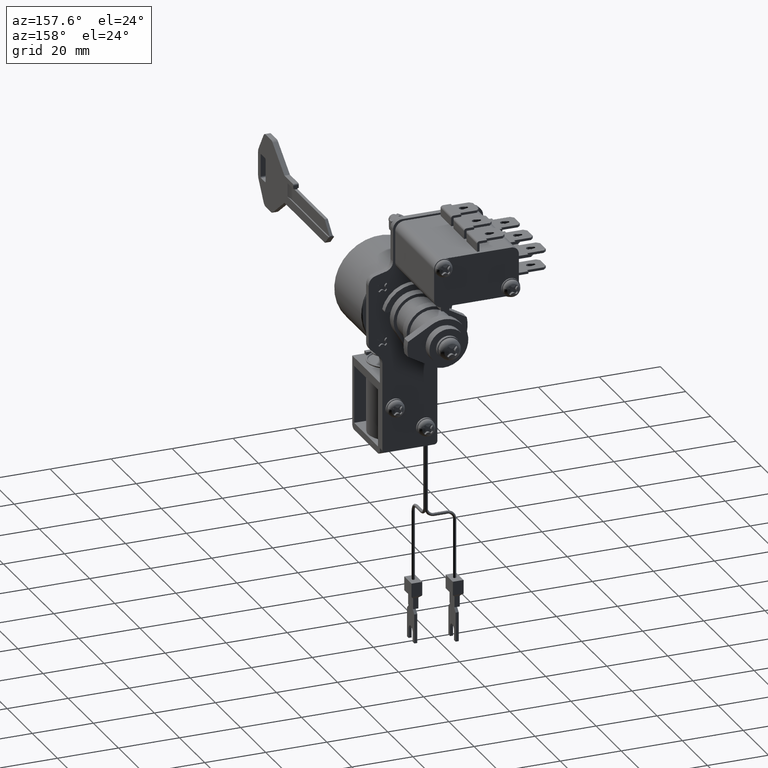
[diagram: clean part render]
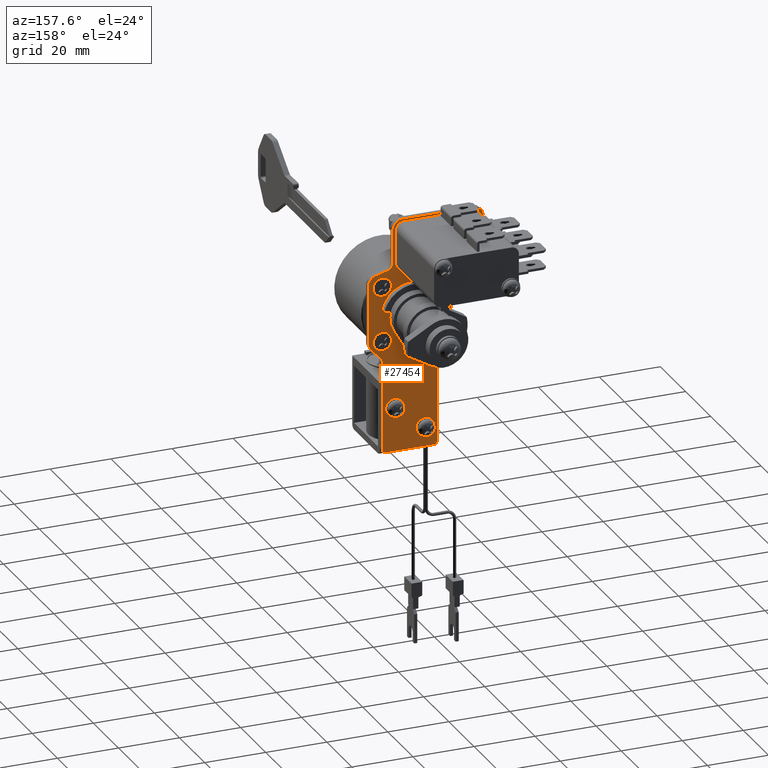
[diagram: same view with one face highlighted and labeled with its STEP entity id]
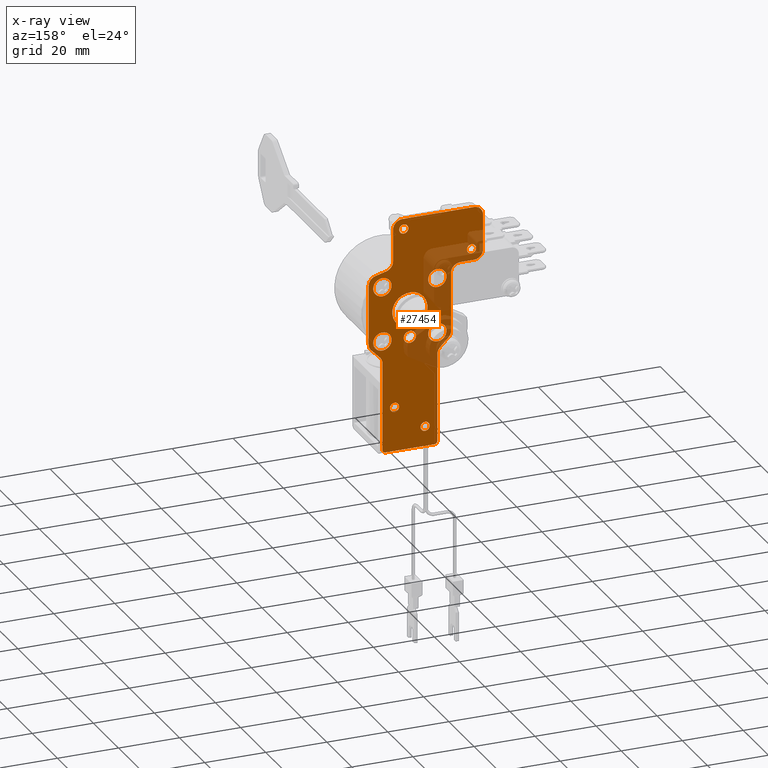
[diagram: x-ray of the same camera — body ghosted, the highlighted face saturated]
A machine part, auxiliary view. The second image highlights one B-rep face of the part: STEP entity #27454.
The next image is the same camera in x-ray: the body ghosted, the highlighted face saturated — about 22% of this face is hidden behind the body in this view.
In plain terms, the highlighted face is a freeform B-spline surface patch.
Its self-contained STEP definition (entity closure, byte-faithful):
#24603=CARTESIAN_POINT('',(29.0,-1.999923846119883,-8.982546928040161));
#24604=VERTEX_POINT('',#24603);
#24610=CARTESIAN_POINT('',(29.0,0.0,-10.999999999999940));
#24611=VERTEX_POINT('',#24610);
#24612=CARTESIAN_POINT('',(29.0,-1.999923846119883,-8.982546928040161));
#24613=CARTESIAN_POINT('',(28.999999999999996,-1.999999999999945,-8.991273297395450));
#24614=CARTESIAN_POINT('',(29.0,-1.999999999999945,-9.0));
#24615=CARTESIAN_POINT('',(29.0,-1.999999999999945,-10.999999999999943));
#24616=CARTESIAN_POINT('',(29.0,0.0,-10.999999999999940));
#24624=(BOUNDED_CURVE()B_SPLINE_CURVE(2,(#24612,#24613,#24614,#24615,#24616),.UNSPECIFIED.,.F.,.U.)B_SPLINE_CURVE_WITH_KNOTS((3,2,3),(0.248460105495365,0.250000000000000,0.500000000000000),.UNSPECIFIED.)CURVE()GEOMETRIC_REPRESENTATION_ITEM()RATIONAL_B_SPLINE_CURVE((0.996414027707793,0.998195901367617,1.0,0.707106781186548,1.0))REPRESENTATION_ITEM(''));
#24625=EDGE_CURVE('',#24604,#24611,#24624,.T.);
#24627=CARTESIAN_POINT('',(29.0,1.984532427645714,-9.248256004202085));
#24628=VERTEX_POINT('',#24627);
#24629=CARTESIAN_POINT('',(29.0,0.0,-10.999999999999940));
#24630=CARTESIAN_POINT('',(28.999999999999993,1.765397200224316,-10.999999999999943));
#24631=CARTESIAN_POINT('',(29.0,1.984532427645715,-9.248256004202085));
#24639=(BOUNDED_CURVE()B_SPLINE_CURVE(2,(#24629,#24630,#24631),.UNSPECIFIED.,.F.,.U.)B_SPLINE_CURVE_WITH_KNOTS((3,3),(0.500000000000000,0.728526071022086),.UNSPECIFIED.)CURVE()GEOMETRIC_REPRESENTATION_ITEM()RATIONAL_B_SPLINE_CURVE((1.0,0.732265053902198,0.954005430260721))REPRESENTATION_ITEM(''));
#24640=EDGE_CURVE('',#24611,#24628,#24639,.T.);
#24690=CARTESIAN_POINT('',(29.0,0.0,-7.000000000000055));
#24691=VERTEX_POINT('',#24690);
#24692=CARTESIAN_POINT('',(28.999999999999996,1.984532427645714,-9.248256004202085));
#24693=CARTESIAN_POINT('',(29.0,1.999999999999945,-9.124609855109915));
#24694=CARTESIAN_POINT('',(29.0,1.999999999999945,-9.0));
#24695=CARTESIAN_POINT('',(29.0,1.999999999999945,-7.000000000000055));
#24696=CARTESIAN_POINT('',(29.0,0.0,-7.000000000000055));
#24704=(BOUNDED_CURVE()B_SPLINE_CURVE(2,(#24692,#24693,#24694,#24695,#24696),.UNSPECIFIED.,.F.,.U.)B_SPLINE_CURVE_WITH_KNOTS((3,2,3),(0.728526071022087,0.750000000000000,1.0),.UNSPECIFIED.)CURVE()GEOMETRIC_REPRESENTATION_ITEM()RATIONAL_B_SPLINE_CURVE((0.954005430260723,0.974841727284350,1.0,0.707106781186548,1.0))REPRESENTATION_ITEM(''));
#24705=EDGE_CURVE('',#24628,#24691,#24704,.T.);
#24707=CARTESIAN_POINT('',(29.0,0.0,-7.000000000000055));
#24708=CARTESIAN_POINT('',(28.999999999999996,-1.982622419280312,-7.000000000000053));
#24709=CARTESIAN_POINT('',(29.000000000000004,-1.999923846119883,-8.982546928040161));
#24717=(BOUNDED_CURVE()B_SPLINE_CURVE(2,(#24707,#24708,#24709),.UNSPECIFIED.,.F.,.U.)B_SPLINE_CURVE_WITH_KNOTS((3,3),(0.0,0.248460105495365),.UNSPECIFIED.)CURVE()GEOMETRIC_REPRESENTATION_ITEM()RATIONAL_B_SPLINE_CURVE((1.0,0.708910879818930,0.996414027707793))REPRESENTATION_ITEM(''));
#24718=EDGE_CURVE('',#24691,#24604,#24717,.T.);
#24755=CARTESIAN_POINT('',(29.0,4.999999999999770,-38.0));
#24756=VERTEX_POINT('',#24755);
#24757=CARTESIAN_POINT('',(29.0,3.504623999442665,-39.382311355867117));
#24758=VERTEX_POINT('',#24757);
#24759=CARTESIAN_POINT('',(29.0,4.999999999999770,-38.0));
#24760=CARTESIAN_POINT('',(29.000000000000007,3.613414263519043,-38.000000000000007));
#24761=CARTESIAN_POINT('',(29.000000000000004,3.504623999442665,-39.382311355867124));
#24769=(BOUNDED_CURVE()B_SPLINE_CURVE(2,(#24759,#24760,#24761),.UNSPECIFIED.,.F.,.U.)B_SPLINE_CURVE_WITH_KNOTS((3,3),(0.0,0.236331300508706),.UNSPECIFIED.)CURVE()GEOMETRIC_REPRESENTATION_ITEM()RATIONAL_B_SPLINE_CURVE((1.0,0.723120658750543,0.969723355912909))REPRESENTATION_ITEM(''));
#24770=EDGE_CURVE('',#24756,#24758,#24769,.T.);
#24811=CARTESIAN_POINT('',(29.0,6.495376000556876,-39.617688644132883));
#24812=VERTEX_POINT('',#24811);
#24818=CARTESIAN_POINT('',(29.0,6.495376000556876,-39.617688644132876));
#24819=CARTESIAN_POINT('',(29.0,6.499999999999770,-39.558935161055118));
#24820=CARTESIAN_POINT('',(29.0,6.499999999999770,-39.500000000000000));
#24821=CARTESIAN_POINT('',(29.0,6.499999999999771,-38.0));
#24822=CARTESIAN_POINT('',(29.0,4.999999999999770,-38.0));
#24830=(BOUNDED_CURVE()B_SPLINE_CURVE(2,(#24818,#24819,#24820,#24821,#24822),.UNSPECIFIED.,.F.,.U.)B_SPLINE_CURVE_WITH_KNOTS((3,2,3),(0.736331300508706,0.750000000000000,1.0),.UNSPECIFIED.)CURVE()GEOMETRIC_REPRESENTATION_ITEM()RATIONAL_B_SPLINE_CURVE((0.969723355912910,0.983986122436004,1.0,0.707106781186548,1.0))REPRESENTATION_ITEM(''));
#24831=EDGE_CURVE('',#24812,#24756,#24830,.T.);
#24854=CARTESIAN_POINT('',(29.0,4.999999999999770,-41.0));
#24855=VERTEX_POINT('',#24854);
#24856=CARTESIAN_POINT('',(29.000000000000004,3.504623999442665,-39.382311355867124));
#24857=CARTESIAN_POINT('',(28.999999999999996,3.499999999999770,-39.441064838944882));
#24858=CARTESIAN_POINT('',(29.0,3.499999999999770,-39.500000000000000));
#24859=CARTESIAN_POINT('',(29.0,3.499999999999770,-41.0));
#24860=CARTESIAN_POINT('',(29.0,4.999999999999770,-41.0));
#24868=(BOUNDED_CURVE()B_SPLINE_CURVE(2,(#24856,#24857,#24858,#24859,#24860),.UNSPECIFIED.,.F.,.U.)B_SPLINE_CURVE_WITH_KNOTS((3,2,3),(0.236331300508706,0.250000000000000,0.500000000000000),.UNSPECIFIED.)CURVE()GEOMETRIC_REPRESENTATION_ITEM()RATIONAL_B_SPLINE_CURVE((0.969723355912909,0.983986122436004,1.0,0.707106781186548,1.0))REPRESENTATION_ITEM(''));
#24869=EDGE_CURVE('',#24758,#24855,#24868,.T.);
#24871=CARTESIAN_POINT('',(29.0,4.999999999999770,-41.0));
#24872=CARTESIAN_POINT('',(29.000000000000004,6.386585736480493,-40.999999999999993));
#24873=CARTESIAN_POINT('',(28.999999999999996,6.495376000556876,-39.617688644132876));
#24881=(BOUNDED_CURVE()B_SPLINE_CURVE(2,(#24871,#24872,#24873),.UNSPECIFIED.,.F.,.U.)B_SPLINE_CURVE_WITH_KNOTS((3,3),(0.500000000000000,0.736331300508705),.UNSPECIFIED.)CURVE()GEOMETRIC_REPRESENTATION_ITEM()RATIONAL_B_SPLINE_CURVE((1.0,0.723120658750544,0.969723355912908))REPRESENTATION_ITEM(''));
#24882=EDGE_CURVE('',#24855,#24812,#24881,.T.);
#24937=CARTESIAN_POINT('',(29.0,-5.0,-30.0));
#24938=VERTEX_POINT('',#24937);
#24939=CARTESIAN_POINT('',(29.0,-6.495376000557107,-31.382311355867120));
#24940=VERTEX_POINT('',#24939);
#24941=CARTESIAN_POINT('',(29.0,-5.0,-30.0));
#24942=CARTESIAN_POINT('',(29.000000000000007,-6.386585736480729,-30.0));
#24943=CARTESIAN_POINT('',(29.000000000000004,-6.495376000557107,-31.382311355867127));
#24951=(BOUNDED_CURVE()B_SPLINE_CURVE(2,(#24941,#24942,#24943),.UNSPECIFIED.,.F.,.U.)B_SPLINE_CURVE_WITH_KNOTS((3,3),(0.0,0.236331300508706),.UNSPECIFIED.)CURVE()GEOMETRIC_REPRESENTATION_ITEM()RATIONAL_B_SPLINE_CURVE((1.0,0.723120658750543,0.969723355912909))REPRESENTATION_ITEM(''));
#24952=EDGE_CURVE('',#24938,#24940,#24951,.T.);
#24993=CARTESIAN_POINT('',(29.0,-3.504623999442894,-31.617688644132880));
#24994=VERTEX_POINT('',#24993);
#25000=CARTESIAN_POINT('',(29.000000000000004,-3.504623999442894,-31.617688644132876));
#25001=CARTESIAN_POINT('',(29.0,-3.500000000000000,-31.558935161055118));
#25002=CARTESIAN_POINT('',(29.0,-3.500000000000000,-31.500000000000000));
#25003=CARTESIAN_POINT('',(29.0,-3.499999999999999,-30.000000000000004));
#25004=CARTESIAN_POINT('',(29.0,-5.0,-30.0));
#25012=(BOUNDED_CURVE()B_SPLINE_CURVE(2,(#25000,#25001,#25002,#25003,#25004),.UNSPECIFIED.,.F.,.U.)B_SPLINE_CURVE_WITH_KNOTS((3,2,3),(0.736331300508706,0.750000000000000,1.0),.UNSPECIFIED.)CURVE()GEOMETRIC_REPRESENTATION_ITEM()RATIONAL_B_SPLINE_CURVE((0.969723355912909,0.983986122436004,1.0,0.707106781186548,1.0))REPRESENTATION_ITEM(''));
#25013=EDGE_CURVE('',#24994,#24938,#25012,.T.);
#25036=CARTESIAN_POINT('',(29.0,-5.0,-33.0));
#25037=VERTEX_POINT('',#25036);
#25038=CARTESIAN_POINT('',(29.000000000000004,-6.495376000557107,-31.382311355867127));
#25039=CARTESIAN_POINT('',(28.999999999999996,-6.500000000000002,-31.441064838944875));
#25040=CARTESIAN_POINT('',(29.0,-6.500000000000001,-31.500000000000000));
#25041=CARTESIAN_POINT('',(29.0,-6.500000000000003,-33.0));
#25042=CARTESIAN_POINT('',(29.0,-5.0,-33.0));
#25050=(BOUNDED_CURVE()B_SPLINE_CURVE(2,(#25038,#25039,#25040,#25041,#25042),.UNSPECIFIED.,.F.,.U.)B_SPLINE_CURVE_WITH_KNOTS((3,2,3),(0.236331300508706,0.250000000000000,0.500000000000000),.UNSPECIFIED.)CURVE()GEOMETRIC_REPRESENTATION_ITEM()RATIONAL_B_SPLINE_CURVE((0.969723355912909,0.983986122436004,1.0,0.707106781186548,1.0))REPRESENTATION_ITEM(''));
#25051=EDGE_CURVE('',#24940,#25037,#25050,.T.);
#25053=CARTESIAN_POINT('',(29.0,-5.0,-33.0));
#25054=CARTESIAN_POINT('',(29.000000000000004,-3.613414263519278,-33.0));
#25055=CARTESIAN_POINT('',(28.999999999999996,-3.504623999442894,-31.617688644132880));
#25063=(BOUNDED_CURVE()B_SPLINE_CURVE(2,(#25053,#25054,#25055),.UNSPECIFIED.,.F.,.U.)B_SPLINE_CURVE_WITH_KNOTS((3,3),(0.500000000000000,0.736331300508705),.UNSPECIFIED.)CURVE()GEOMETRIC_REPRESENTATION_ITEM()RATIONAL_B_SPLINE_CURVE((1.0,0.723120658750544,0.969723355912908))REPRESENTATION_ITEM(''));
#25064=EDGE_CURVE('',#25037,#24994,#25063,.T.);
#25119=CARTESIAN_POINT('',(29.0,-2.0,28.600000000000001));
#25120=VERTEX_POINT('',#25119);
#25121=CARTESIAN_POINT('',(29.0,-3.495376000557106,27.217688644132870));
#25122=VERTEX_POINT('',#25121);
#25123=CARTESIAN_POINT('',(29.0,-2.0,28.600000000000001));
#25124=CARTESIAN_POINT('',(29.000000000000004,-3.386585736480730,28.600000000000001));
#25125=CARTESIAN_POINT('',(29.0,-3.495376000557106,27.217688644132874));
#25133=(BOUNDED_CURVE()B_SPLINE_CURVE(2,(#25123,#25124,#25125),.UNSPECIFIED.,.F.,.U.)B_SPLINE_CURVE_WITH_KNOTS((3,3),(0.0,0.236331300508706),.UNSPECIFIED.)CURVE()GEOMETRIC_REPRESENTATION_ITEM()RATIONAL_B_SPLINE_CURVE((1.0,0.723120658750543,0.969723355912911))REPRESENTATION_ITEM(''));
#25134=EDGE_CURVE('',#25120,#25122,#25133,.T.);
#25175=CARTESIAN_POINT('',(29.000000000000011,-0.504623999442894,26.982311355867129));
#25176=VERTEX_POINT('',#25175);
#25182=CARTESIAN_POINT('',(29.000000000000004,-0.504623999442894,26.982311355867129));
#25183=CARTESIAN_POINT('',(29.0,-0.500000000000000,27.041064838944877));
#25184=CARTESIAN_POINT('',(29.0,-0.500000000000000,27.100000000000001));
#25185=CARTESIAN_POINT('',(29.0,-0.500000000000000,28.600000000000012));
#25186=CARTESIAN_POINT('',(29.0,-2.0,28.600000000000001));
#25194=(BOUNDED_CURVE()B_SPLINE_CURVE(2,(#25182,#25183,#25184,#25185,#25186),.UNSPECIFIED.,.F.,.U.)B_SPLINE_CURVE_WITH_KNOTS((3,2,3),(0.736331300508706,0.750000000000000,1.0),.UNSPECIFIED.)CURVE()GEOMETRIC_REPRESENTATION_ITEM()RATIONAL_B_SPLINE_CURVE((0.969723355912911,0.983986122436005,1.0,0.707106781186548,1.0))REPRESENTATION_ITEM(''));
#25195=EDGE_CURVE('',#25176,#25120,#25194,.T.);
#25218=CARTESIAN_POINT('',(29.0,-2.0,25.600000000000001));
#25219=VERTEX_POINT('',#25218);
#25220=CARTESIAN_POINT('',(29.000000000000004,-3.495376000557105,27.217688644132867));
#25221=CARTESIAN_POINT('',(29.0,-3.500000000000000,27.158935161055119));
#25222=CARTESIAN_POINT('',(29.0,-3.500000000000000,27.100000000000001));
#25223=CARTESIAN_POINT('',(29.0,-3.499999999999999,25.600000000000001));
#25224=CARTESIAN_POINT('',(29.0,-2.0,25.600000000000001));
#25232=(BOUNDED_CURVE()B_SPLINE_CURVE(2,(#25220,#25221,#25222,#25223,#25224),.UNSPECIFIED.,.F.,.U.)B_SPLINE_CURVE_WITH_KNOTS((3,2,3),(0.236331300508706,0.250000000000000,0.500000000000000),.UNSPECIFIED.)CURVE()GEOMETRIC_REPRESENTATION_ITEM()RATIONAL_B_SPLINE_CURVE((0.969723355912911,0.983986122436005,1.0,0.707106781186548,1.0))REPRESENTATION_ITEM(''));
#25233=EDGE_CURVE('',#25122,#25219,#25232,.T.);
#25235=CARTESIAN_POINT('',(29.0,-2.0,25.600000000000001));
#25236=CARTESIAN_POINT('',(29.000000000000004,-0.613414263519278,25.600000000000005));
#25237=CARTESIAN_POINT('',(29.000000000000007,-0.504623999442894,26.982311355867129));
#25245=(BOUNDED_CURVE()B_SPLINE_CURVE(2,(#25235,#25236,#25237),.UNSPECIFIED.,.F.,.U.)B_SPLINE_CURVE_WITH_KNOTS((3,3),(0.500000000000000,0.736331300508705),.UNSPECIFIED.)CURVE()GEOMETRIC_REPRESENTATION_ITEM()RATIONAL_B_SPLINE_CURVE((1.0,0.723120658750544,0.969723355912908))REPRESENTATION_ITEM(''));
#25246=EDGE_CURVE('',#25219,#25176,#25245,.T.);
#25301=CARTESIAN_POINT('',(29.0,20.199999999999999,18.300000000000001));
#25302=VERTEX_POINT('',#25301);
#25303=CARTESIAN_POINT('',(29.0,18.704623999442891,16.917688644132870));
#25304=VERTEX_POINT('',#25303);
#25305=CARTESIAN_POINT('',(29.0,20.199999999999999,18.300000000000001));
#25306=CARTESIAN_POINT('',(28.999999999999993,18.813414263519267,18.299999999999997));
#25307=CARTESIAN_POINT('',(29.0,18.704623999442894,16.917688644132870));
#25315=(BOUNDED_CURVE()B_SPLINE_CURVE(2,(#25305,#25306,#25307),.UNSPECIFIED.,.F.,.U.)B_SPLINE_CURVE_WITH_KNOTS((3,3),(0.0,0.236331300508706),.UNSPECIFIED.)CURVE()GEOMETRIC_REPRESENTATION_ITEM()RATIONAL_B_SPLINE_CURVE((1.0,0.723120658750543,0.969723355912910))REPRESENTATION_ITEM(''));
#25316=EDGE_CURVE('',#25302,#25304,#25315,.T.);
#25357=CARTESIAN_POINT('',(29.0,21.695376000557101,16.682311355867132));
#25358=VERTEX_POINT('',#25357);
#25364=CARTESIAN_POINT('',(29.000000000000004,21.695376000557104,16.682311355867128));
#25365=CARTESIAN_POINT('',(29.000000000000004,21.699999999999999,16.741064838944883));
#25366=CARTESIAN_POINT('',(29.0,21.699999999999999,16.800000000000001));
#25367=CARTESIAN_POINT('',(29.0,21.699999999999996,18.300000000000001));
#25368=CARTESIAN_POINT('',(29.0,20.199999999999999,18.300000000000001));
#25376=(BOUNDED_CURVE()B_SPLINE_CURVE(2,(#25364,#25365,#25366,#25367,#25368),.UNSPECIFIED.,.F.,.U.)B_SPLINE_CURVE_WITH_KNOTS((3,2,3),(0.736331300508707,0.750000000000000,1.0),.UNSPECIFIED.)CURVE()GEOMETRIC_REPRESENTATION_ITEM()RATIONAL_B_SPLINE_CURVE((0.969723355912911,0.983986122436005,1.0,0.707106781186548,1.0))REPRESENTATION_ITEM(''));
#25377=EDGE_CURVE('',#25358,#25302,#25376,.T.);
#25400=CARTESIAN_POINT('',(29.0,20.199999999999999,15.300000000000001));
#25401=VERTEX_POINT('',#25400);
#25402=CARTESIAN_POINT('',(29.0,18.704623999442894,16.917688644132870));
#25403=CARTESIAN_POINT('',(29.000000000000007,18.699999999999999,16.858935161055118));
#25404=CARTESIAN_POINT('',(29.0,18.699999999999999,16.800000000000001));
#25405=CARTESIAN_POINT('',(29.0,18.699999999999999,15.300000000000004));
#25406=CARTESIAN_POINT('',(29.0,20.199999999999999,15.300000000000001));
#25414=(BOUNDED_CURVE()B_SPLINE_CURVE(2,(#25402,#25403,#25404,#25405,#25406),.UNSPECIFIED.,.F.,.U.)B_SPLINE_CURVE_WITH_KNOTS((3,2,3),(0.236331300508706,0.250000000000000,0.500000000000000),.UNSPECIFIED.)CURVE()GEOMETRIC_REPRESENTATION_ITEM()RATIONAL_B_SPLINE_CURVE((0.969723355912910,0.983986122436004,1.0,0.707106781186548,1.0))REPRESENTATION_ITEM(''));
#25415=EDGE_CURVE('',#25304,#25401,#25414,.T.);
#25417=CARTESIAN_POINT('',(29.0,20.199999999999999,15.300000000000001));
#25418=CARTESIAN_POINT('',(29.000000000000004,21.586585736480735,15.299999999999997));
#25419=CARTESIAN_POINT('',(28.999999999999996,21.695376000557104,16.682311355867128));
#25427=(BOUNDED_CURVE()B_SPLINE_CURVE(2,(#25417,#25418,#25419),.UNSPECIFIED.,.F.,.U.)B_SPLINE_CURVE_WITH_KNOTS((3,3),(0.500000000000000,0.736331300508708),.UNSPECIFIED.)CURVE()GEOMETRIC_REPRESENTATION_ITEM()RATIONAL_B_SPLINE_CURVE((1.0,0.723120658750541,0.969723355912913))REPRESENTATION_ITEM(''));
#25428=EDGE_CURVE('',#25401,#25358,#25427,.T.);
#25483=CARTESIAN_POINT('',(29.0,-9.0,-5.999999999999999));
#25484=VERTEX_POINT('',#25483);
#25485=CARTESIAN_POINT('',(29.000000000025469,-6.009247998790690,-8.764622712617925));
#25486=VERTEX_POINT('',#25485);
#25487=CARTESIAN_POINT('',(29.0,-9.0,-5.999999999999999));
#25488=CARTESIAN_POINT('',(29.0,-6.226828525390990,-5.999999999999999));
#25489=CARTESIAN_POINT('',(29.000000000025477,-6.009247998790690,-8.764622712617927));
#25497=(BOUNDED_CURVE()B_SPLINE_CURVE(2,(#25487,#25488,#25489),.UNSPECIFIED.,.F.,.U.)B_SPLINE_CURVE_WITH_KNOTS((3,3),(0.0,0.236331300610236),.UNSPECIFIED.)CURVE()GEOMETRIC_REPRESENTATION_ITEM()RATIONAL_B_SPLINE_CURVE((1.0,0.723120658631593,0.969723356124796))REPRESENTATION_ITEM(''));
#25498=EDGE_CURVE('',#25484,#25486,#25497,.T.);
#25500=CARTESIAN_POINT('',(29.000000000025469,-11.990752001209311,-9.235377287382075));
#25501=VERTEX_POINT('',#25500);
#25502=CARTESIAN_POINT('',(29.000000000025469,-11.990752001209311,-9.235377287382075));
#25503=CARTESIAN_POINT('',(29.000000000000004,-11.999999999999998,-9.117870321220462));
#25504=CARTESIAN_POINT('',(29.0,-12.0,-9.0));
#25505=CARTESIAN_POINT('',(29.0,-12.0,-5.999999999999999));
#25506=CARTESIAN_POINT('',(29.0,-9.0,-5.999999999999999));
#25514=(BOUNDED_CURVE()B_SPLINE_CURVE(2,(#25502,#25503,#25504,#25505,#25506),.UNSPECIFIED.,.F.,.U.)B_SPLINE_CURVE_WITH_KNOTS((3,2,3),(0.736331300610236,0.750000000000000,1.0),.UNSPECIFIED.)CURVE()GEOMETRIC_REPRESENTATION_ITEM()RATIONAL_B_SPLINE_CURVE((0.969723356124796,0.983986122554954,1.0,0.707106781186548,1.0))REPRESENTATION_ITEM(''));
#25515=EDGE_CURVE('',#25501,#25484,#25514,.T.);
#25582=CARTESIAN_POINT('',(29.0,-9.0,-12.0));
#25583=VERTEX_POINT('',#25582);
#25584=CARTESIAN_POINT('',(29.000000000025469,-6.009247998790690,-8.764622712617925));
#25585=CARTESIAN_POINT('',(29.000000000000004,-5.999999999999999,-8.882129678779537));
#25586=CARTESIAN_POINT('',(29.0,-5.999999999999999,-9.0));
#25587=CARTESIAN_POINT('',(29.0,-5.999999999999999,-12.0));
#25588=CARTESIAN_POINT('',(29.0,-9.0,-12.0));
#25596=(BOUNDED_CURVE()B_SPLINE_CURVE(2,(#25584,#25585,#25586,#25587,#25588),.UNSPECIFIED.,.F.,.U.)B_SPLINE_CURVE_WITH_KNOTS((3,2,3),(0.236331300610236,0.250000000000000,0.500000000000000),.UNSPECIFIED.)CURVE()GEOMETRIC_REPRESENTATION_ITEM()RATIONAL_B_SPLINE_CURVE((0.969723356124796,0.983986122554954,1.0,0.707106781186548,1.0))REPRESENTATION_ITEM(''));
#25597=EDGE_CURVE('',#25486,#25583,#25596,.T.);
#25631=CARTESIAN_POINT('',(29.0,-9.0,-12.0));
#25632=CARTESIAN_POINT('',(29.000000000000007,-11.773171474608995,-12.000000000000002));
#25633=CARTESIAN_POINT('',(29.000000000025477,-11.990752001209312,-9.235377287382075));
#25641=(BOUNDED_CURVE()B_SPLINE_CURVE(2,(#25631,#25632,#25633),.UNSPECIFIED.,.F.,.U.)B_SPLINE_CURVE_WITH_KNOTS((3,3),(0.500000000000000,0.736331300610235),.UNSPECIFIED.)CURVE()GEOMETRIC_REPRESENTATION_ITEM()RATIONAL_B_SPLINE_CURVE((1.0,0.723120658631594,0.969723356124794))REPRESENTATION_ITEM(''));
#25642=EDGE_CURVE('',#25583,#25501,#25641,.T.);
#25665=CARTESIAN_POINT('',(29.0,9.0,-5.999999999999999));
#25666=VERTEX_POINT('',#25665);
#25667=CARTESIAN_POINT('',(29.000000000025469,11.990752001209311,-8.764622712617925));
#25668=VERTEX_POINT('',#25667);
#25669=CARTESIAN_POINT('',(29.0,9.0,-5.999999999999999));
#25670=CARTESIAN_POINT('',(29.0,11.773171474609006,-5.999999999999999));
#25671=CARTESIAN_POINT('',(29.000000000025473,11.990752001209316,-8.764622712617925));
#25679=(BOUNDED_CURVE()B_SPLINE_CURVE(2,(#25669,#25670,#25671),.UNSPECIFIED.,.F.,.U.)B_SPLINE_CURVE_WITH_KNOTS((3,3),(0.0,0.236331300610236),.UNSPECIFIED.)CURVE()GEOMETRIC_REPRESENTATION_ITEM()RATIONAL_B_SPLINE_CURVE((1.0,0.723120658631593,0.969723356124795))REPRESENTATION_ITEM(''));
#25680=EDGE_CURVE('',#25666,#25668,#25679,.T.);
#25682=CARTESIAN_POINT('',(29.000000000025469,6.009247998790690,-9.235377287382077));
#25683=VERTEX_POINT('',#25682);
#25684=CARTESIAN_POINT('',(29.000000000025477,6.009247998790690,-9.235377287382077));
#25685=CARTESIAN_POINT('',(28.999999999999996,5.999999999999998,-9.117870321220464));
#25686=CARTESIAN_POINT('',(29.0,5.999999999999999,-9.0));
#25687=CARTESIAN_POINT('',(29.0,5.999999999999999,-5.999999999999999));
#25688=CARTESIAN_POINT('',(29.0,9.0,-5.999999999999999));
#25696=(BOUNDED_CURVE()B_SPLINE_CURVE(2,(#25684,#25685,#25686,#25687,#25688),.UNSPECIFIED.,.F.,.U.)B_SPLINE_CURVE_WITH_KNOTS((3,2,3),(0.736331300610236,0.750000000000000,1.0),.UNSPECIFIED.)CURVE()GEOMETRIC_REPRESENTATION_ITEM()RATIONAL_B_SPLINE_CURVE((0.969723356124795,0.983986122554954,1.0,0.707106781186548,1.0))REPRESENTATION_ITEM(''));
#25697=EDGE_CURVE('',#25683,#25666,#25696,.T.);
#25764=CARTESIAN_POINT('',(29.0,9.0,-12.0));
#25765=VERTEX_POINT('',#25764);
#25766=CARTESIAN_POINT('',(29.000000000025469,11.990752001209314,-8.764622712617925));
#25767=CARTESIAN_POINT('',(28.999999999999996,11.999999999999998,-8.882129678779537));
#25768=CARTESIAN_POINT('',(29.0,12.0,-9.0));
#25769=CARTESIAN_POINT('',(29.0,12.0,-12.0));
#25770=CARTESIAN_POINT('',(29.0,9.0,-12.0));
#25778=(BOUNDED_CURVE()B_SPLINE_CURVE(2,(#25766,#25767,#25768,#25769,#25770),.UNSPECIFIED.,.F.,.U.)B_SPLINE_CURVE_WITH_KNOTS((3,2,3),(0.236331300610236,0.250000000000000,0.500000000000000),.UNSPECIFIED.)CURVE()GEOMETRIC_REPRESENTATION_ITEM()RATIONAL_B_SPLINE_CURVE((0.969723356124795,0.983986122554954,1.0,0.707106781186548,1.0))REPRESENTATION_ITEM(''));
#25779=EDGE_CURVE('',#25668,#25765,#25778,.T.);
#25813=CARTESIAN_POINT('',(29.0,9.0,-12.0));
#25814=CARTESIAN_POINT('',(29.000000000000007,6.226828525391006,-12.000000000000002));
#25815=CARTESIAN_POINT('',(29.000000000025477,6.009247998790690,-9.235377287382077));
#25823=(BOUNDED_CURVE()B_SPLINE_CURVE(2,(#25813,#25814,#25815),.UNSPECIFIED.,.F.,.U.)B_SPLINE_CURVE_WITH_KNOTS((3,3),(0.500000000000000,0.736331300610235),.UNSPECIFIED.)CURVE()GEOMETRIC_REPRESENTATION_ITEM()RATIONAL_B_SPLINE_CURVE((1.0,0.723120658631594,0.969723356124794))REPRESENTATION_ITEM(''));
#25824=EDGE_CURVE('',#25765,#25683,#25823,.T.);
#25847=CARTESIAN_POINT('',(29.0,-9.0,12.0));
#25848=VERTEX_POINT('',#25847);
#25849=CARTESIAN_POINT('',(29.000000000025469,-6.009247998790690,9.235377287382075));
#25850=VERTEX_POINT('',#25849);
#25851=CARTESIAN_POINT('',(29.0,-9.0,12.0));
#25852=CARTESIAN_POINT('',(29.0,-6.226828525390990,12.0));
#25853=CARTESIAN_POINT('',(29.000000000025469,-6.009247998790690,9.235377287382075));
#25861=(BOUNDED_CURVE()B_SPLINE_CURVE(2,(#25851,#25852,#25853),.UNSPECIFIED.,.F.,.U.)B_SPLINE_CURVE_WITH_KNOTS((3,3),(0.0,0.236331300610236),.UNSPECIFIED.)CURVE()GEOMETRIC_REPRESENTATION_ITEM()RATIONAL_B_SPLINE_CURVE((1.0,0.723120658631593,0.969723356124796))REPRESENTATION_ITEM(''));
#25862=EDGE_CURVE('',#25848,#25850,#25861,.T.);
#25864=CARTESIAN_POINT('',(29.000000000025469,-11.990752001209311,8.764622712617925));
#25865=VERTEX_POINT('',#25864);
#25866=CARTESIAN_POINT('',(29.000000000025469,-11.990752001209311,8.764622712617925));
#25867=CARTESIAN_POINT('',(29.000000000000004,-11.999999999999998,8.882129678779538));
#25868=CARTESIAN_POINT('',(29.0,-12.0,9.0));
#25869=CARTESIAN_POINT('',(29.0,-12.0,12.0));
#25870=CARTESIAN_POINT('',(29.0,-9.0,12.0));
#25878=(BOUNDED_CURVE()B_SPLINE_CURVE(2,(#25866,#25867,#25868,#25869,#25870),.UNSPECIFIED.,.F.,.U.)B_SPLINE_CURVE_WITH_KNOTS((3,2,3),(0.736331300610236,0.750000000000000,1.0),.UNSPECIFIED.)CURVE()GEOMETRIC_REPRESENTATION_ITEM()RATIONAL_B_SPLINE_CURVE((0.969723356124796,0.983986122554954,1.0,0.707106781186548,1.0))REPRESENTATION_ITEM(''));
#25879=EDGE_CURVE('',#25865,#25848,#25878,.T.);
#25946=CARTESIAN_POINT('',(29.0,-9.0,5.999999999999999));
#25947=VERTEX_POINT('',#25946);
#25948=CARTESIAN_POINT('',(29.000000000025473,-6.009247998790690,9.235377287382075));
#25949=CARTESIAN_POINT('',(28.999999999999993,-5.999999999999999,9.117870321220462));
#25950=CARTESIAN_POINT('',(29.0,-5.999999999999999,9.0));
#25951=CARTESIAN_POINT('',(29.0,-5.999999999999999,5.999999999999999));
#25952=CARTESIAN_POINT('',(29.0,-9.0,5.999999999999999));
#25960=(BOUNDED_CURVE()B_SPLINE_CURVE(2,(#25948,#25949,#25950,#25951,#25952),.UNSPECIFIED.,.F.,.U.)B_SPLINE_CURVE_WITH_KNOTS((3,2,3),(0.236331300610236,0.250000000000000,0.500000000000000),.UNSPECIFIED.)CURVE()GEOMETRIC_REPRESENTATION_ITEM()RATIONAL_B_SPLINE_CURVE((0.969723356124795,0.983986122554954,1.0,0.707106781186548,1.0))REPRESENTATION_ITEM(''));
#25961=EDGE_CURVE('',#25850,#25947,#25960,.T.);
#25995=CARTESIAN_POINT('',(29.0,-9.0,5.999999999999999));
#25996=CARTESIAN_POINT('',(29.000000000000007,-11.773171474608995,6.0));
#25997=CARTESIAN_POINT('',(29.000000000025477,-11.990752001209312,8.764622712617925));
#26005=(BOUNDED_CURVE()B_SPLINE_CURVE(2,(#25995,#25996,#25997),.UNSPECIFIED.,.F.,.U.)B_SPLINE_CURVE_WITH_KNOTS((3,3),(0.500000000000000,0.736331300610235),.UNSPECIFIED.)CURVE()GEOMETRIC_REPRESENTATION_ITEM()RATIONAL_B_SPLINE_CURVE((1.0,0.723120658631594,0.969723356124794))REPRESENTATION_ITEM(''));
#26006=EDGE_CURVE('',#25947,#25865,#26005,.T.);
#26029=CARTESIAN_POINT('',(29.0,9.0,12.0));
#26030=VERTEX_POINT('',#26029);
#26031=CARTESIAN_POINT('',(29.000000000025469,11.990752001209311,9.235377287382077));
#26032=VERTEX_POINT('',#26031);
#26033=CARTESIAN_POINT('',(29.0,9.0,12.0));
#26034=CARTESIAN_POINT('',(29.0,11.773171474609006,12.0));
#26035=CARTESIAN_POINT('',(29.000000000025473,11.990752001209316,9.235377287382077));
#26043=(BOUNDED_CURVE()B_SPLINE_CURVE(2,(#26033,#26034,#26035),.UNSPECIFIED.,.F.,.U.)B_SPLINE_CURVE_WITH_KNOTS((3,3),(0.0,0.236331300610236),.UNSPECIFIED.)CURVE()GEOMETRIC_REPRESENTATION_ITEM()RATIONAL_B_SPLINE_CURVE((1.0,0.723120658631593,0.969723356124795))REPRESENTATION_ITEM(''));
#26044=EDGE_CURVE('',#26030,#26032,#26043,.T.);
#26046=CARTESIAN_POINT('',(29.000000000025469,6.009247998790691,8.764622712617925));
#26047=VERTEX_POINT('',#26046);
#26048=CARTESIAN_POINT('',(29.000000000025466,6.009247998790691,8.764622712617925));
#26049=CARTESIAN_POINT('',(28.999999999999996,5.999999999999998,8.882129678779538));
#26050=CARTESIAN_POINT('',(29.0,5.999999999999999,9.0));
#26051=CARTESIAN_POINT('',(29.0,5.999999999999999,12.0));
#26052=CARTESIAN_POINT('',(29.0,9.0,12.0));
#26060=(BOUNDED_CURVE()B_SPLINE_CURVE(2,(#26048,#26049,#26050,#26051,#26052),.UNSPECIFIED.,.F.,.U.)B_SPLINE_CURVE_WITH_KNOTS((3,2,3),(0.736331300610236,0.750000000000000,1.0),.UNSPECIFIED.)CURVE()GEOMETRIC_REPRESENTATION_ITEM()RATIONAL_B_SPLINE_CURVE((0.969723356124795,0.983986122554954,1.0,0.707106781186548,1.0))REPRESENTATION_ITEM(''));
#26061=EDGE_CURVE('',#26047,#26030,#26060,.T.);
#26128=CARTESIAN_POINT('',(29.0,9.0,5.999999999999999));
#26129=VERTEX_POINT('',#26128);
#26130=CARTESIAN_POINT('',(29.000000000025469,11.990752001209314,9.235377287382077));
#26131=CARTESIAN_POINT('',(28.999999999999996,11.999999999999998,9.117870321220464));
#26132=CARTESIAN_POINT('',(29.0,12.0,9.0));
#26133=CARTESIAN_POINT('',(29.0,12.0,5.999999999999999));
#26134=CARTESIAN_POINT('',(29.0,9.0,5.999999999999999));
#26142=(BOUNDED_CURVE()B_SPLINE_CURVE(2,(#26130,#26131,#26132,#26133,#26134),.UNSPECIFIED.,.F.,.U.)B_SPLINE_CURVE_WITH_KNOTS((3,2,3),(0.236331300610236,0.250000000000000,0.500000000000000),.UNSPECIFIED.)CURVE()GEOMETRIC_REPRESENTATION_ITEM()RATIONAL_B_SPLINE_CURVE((0.969723356124795,0.983986122554954,1.0,0.707106781186548,1.0))REPRESENTATION_ITEM(''));
#26143=EDGE_CURVE('',#26032,#26129,#26142,.T.);
#26177=CARTESIAN_POINT('',(29.0,9.0,5.999999999999999));
#26178=CARTESIAN_POINT('',(29.000000000000007,6.226828525391006,6.0));
#26179=CARTESIAN_POINT('',(29.000000000025477,6.009247998790691,8.764622712617925));
#26187=(BOUNDED_CURVE()B_SPLINE_CURVE(2,(#26177,#26178,#26179),.UNSPECIFIED.,.F.,.U.)B_SPLINE_CURVE_WITH_KNOTS((3,3),(0.500000000000000,0.736331300610235),.UNSPECIFIED.)CURVE()GEOMETRIC_REPRESENTATION_ITEM()RATIONAL_B_SPLINE_CURVE((1.0,0.723120658631594,0.969723356124794))REPRESENTATION_ITEM(''));
#26188=EDGE_CURVE('',#26129,#26047,#26187,.T.);
#26215=CARTESIAN_POINT('',(29.0,-5.709804776554321,0.678696849585621));
#26216=VERTEX_POINT('',#26215);
#26217=CARTESIAN_POINT('',(29.0,0.0,-5.750000000000000));
#26218=VERTEX_POINT('',#26217);
#26219=CARTESIAN_POINT('',(29.0,-5.709804776554321,0.678696849585621));
#26220=CARTESIAN_POINT('',(29.0,-5.750000000000001,0.340538688311012));
#26221=CARTESIAN_POINT('',(29.0,-5.750000000000000,0.0));
#26222=CARTESIAN_POINT('',(29.0,-5.750000000000000,-5.750000000000000));
#26223=CARTESIAN_POINT('',(29.0,0.0,-5.750000000000000));
#26231=(BOUNDED_CURVE()B_SPLINE_CURVE(2,(#26219,#26220,#26221,#26222,#26223),.UNSPECIFIED.,.F.,.U.)B_SPLINE_CURVE_WITH_KNOTS((3,2,3),(0.229562473497337,0.250000000000000,0.500000000000000),.UNSPECIFIED.)CURVE()GEOMETRIC_REPRESENTATION_ITEM()RATIONAL_B_SPLINE_CURVE((0.956026754152002,0.976055948312199,1.0,0.707106781186548,1.0))REPRESENTATION_ITEM(''));
#26232=EDGE_CURVE('',#26216,#26218,#26231,.T.);
#26234=CARTESIAN_POINT('',(29.0,5.739275090905370,-0.351029102658390));
#26235=VERTEX_POINT('',#26234);
#26236=CARTESIAN_POINT('',(29.0,0.0,-5.750000000000000));
#26237=CARTESIAN_POINT('',(28.999999999999996,5.409059884078955,-5.750000000000000));
#26238=CARTESIAN_POINT('',(29.0,5.739275090905370,-0.351029102658390));
#26246=(BOUNDED_CURVE()B_SPLINE_CURVE(2,(#26236,#26237,#26238),.UNSPECIFIED.,.F.,.U.)B_SPLINE_CURVE_WITH_KNOTS((3,3),(0.500000000000000,0.739332962221948),.UNSPECIFIED.)CURVE()GEOMETRIC_REPRESENTATION_ITEM()RATIONAL_B_SPLINE_CURVE((1.0,0.719603993306622,0.976072041630293))REPRESENTATION_ITEM(''));
#26247=EDGE_CURVE('',#26218,#26235,#26246,.T.);
#26314=CARTESIAN_POINT('',(29.0,0.0,5.750000000000000));
#26315=VERTEX_POINT('',#26314);
#26316=CARTESIAN_POINT('',(29.0,0.0,5.750000000000000));
#26317=CARTESIAN_POINT('',(29.0,-5.107003523663247,5.750000000000000));
#26318=CARTESIAN_POINT('',(29.0,-5.709804776554321,0.678696849585621));
#26326=(BOUNDED_CURVE()B_SPLINE_CURVE(2,(#26316,#26317,#26318),.UNSPECIFIED.,.F.,.U.)B_SPLINE_CURVE_WITH_KNOTS((3,3),(0.0,0.229562473497337),.UNSPECIFIED.)CURVE()GEOMETRIC_REPRESENTATION_ITEM()RATIONAL_B_SPLINE_CURVE((1.0,0.731050832874349,0.956026754152002))REPRESENTATION_ITEM(''));
#26327=EDGE_CURVE('',#26315,#26216,#26326,.T.);
#26361=CARTESIAN_POINT('',(29.000000000000004,5.739275090905370,-0.351029102658390));
#26362=CARTESIAN_POINT('',(28.999999999999996,5.750000000000000,-0.175678389300782));
#26363=CARTESIAN_POINT('',(29.0,5.750000000000000,0.0));
#26364=CARTESIAN_POINT('',(29.0,5.750000000000000,5.750000000000000));
#26365=CARTESIAN_POINT('',(29.0,0.0,5.750000000000000));
#26373=(BOUNDED_CURVE()B_SPLINE_CURVE(2,(#26361,#26362,#26363,#26364,#26365),.UNSPECIFIED.,.F.,.U.)B_SPLINE_CURVE_WITH_KNOTS((3,2,3),(0.739332962221948,0.750000000000000,1.0),.UNSPECIFIED.)CURVE()GEOMETRIC_REPRESENTATION_ITEM()RATIONAL_B_SPLINE_CURVE((0.976072041630294,0.987502787879926,1.0,0.707106781186548,1.0))REPRESENTATION_ITEM(''));
#26374=EDGE_CURVE('',#26235,#26315,#26373,.T.);
#26405=CARTESIAN_POINT('',(29.0,24.0,27.500000000000000));
#26406=VERTEX_POINT('',#26405);
#26407=CARTESIAN_POINT('',(29.0,21.0,30.500000000000000));
#26408=VERTEX_POINT('',#26407);
#26409=CARTESIAN_POINT('',(29.0,24.0,27.500000000000000));
#26410=CARTESIAN_POINT('',(29.0,23.999999999999996,30.499999999999996));
#26411=CARTESIAN_POINT('',(29.0,21.0,30.500000000000000));
#26419=(BOUNDED_CURVE()B_SPLINE_CURVE(2,(#26409,#26410,#26411),.UNSPECIFIED.,.F.,.U.)CURVE()GEOMETRIC_REPRESENTATION_ITEM()QUASI_UNIFORM_CURVE()RATIONAL_B_SPLINE_CURVE((1.0,0.707106781186548,1.0))REPRESENTATION_ITEM(''));
#26420=EDGE_CURVE('',#26406,#26408,#26419,.T.);
#26457=CARTESIAN_POINT('',(29.0,24.0,16.0));
#26458=VERTEX_POINT('',#26457);
#26459=CARTESIAN_POINT('',(29.0,24.0,16.0));
#26460=CARTESIAN_POINT('',(29.0,24.0,27.500000000000000));
#26461=QUASI_UNIFORM_CURVE('',1,(#26459,#26460),.UNSPECIFIED.,.F.,.U.);
#26462=EDGE_CURVE('',#26458,#26406,#26461,.T.);
#26494=CARTESIAN_POINT('',(29.0,21.0,13.0));
#26495=VERTEX_POINT('',#26494);
#26496=CARTESIAN_POINT('',(29.0,21.0,13.0));
#26497=CARTESIAN_POINT('',(29.0,23.999999999999996,13.000000000000004));
#26498=CARTESIAN_POINT('',(29.0,24.0,16.0));
#26506=(BOUNDED_CURVE()B_SPLINE_CURVE(2,(#26496,#26497,#26498),.UNSPECIFIED.,.F.,.U.)CURVE()GEOMETRIC_REPRESENTATION_ITEM()QUASI_UNIFORM_CURVE()RATIONAL_B_SPLINE_CURVE((1.0,0.707106781186548,1.0))REPRESENTATION_ITEM(''));
#26507=EDGE_CURVE('',#26495,#26458,#26506,.T.);
#26538=CARTESIAN_POINT('',(29.0,16.500000000000000,13.0));
#26539=VERTEX_POINT('',#26538);
#26540=CARTESIAN_POINT('',(29.0,16.500000000000000,13.0));
#26541=CARTESIAN_POINT('',(29.0,21.0,13.0));
#26542=QUASI_UNIFORM_CURVE('',1,(#26540,#26541),.UNSPECIFIED.,.F.,.U.);
#26543=EDGE_CURVE('',#26539,#26495,#26542,.T.);
#26575=CARTESIAN_POINT('',(29.0,13.499999999999760,10.0));
#26576=VERTEX_POINT('',#26575);
#26577=CARTESIAN_POINT('',(29.0,16.500000000000000,13.0));
#26578=CARTESIAN_POINT('',(29.0,13.500000000000002,13.000000000000004));
#26579=CARTESIAN_POINT('',(29.0,13.499999999999760,10.0));
#26587=(BOUNDED_CURVE()B_SPLINE_CURVE(2,(#26577,#26578,#26579),.UNSPECIFIED.,.F.,.U.)CURVE()GEOMETRIC_REPRESENTATION_ITEM()QUASI_UNIFORM_CURVE()RATIONAL_B_SPLINE_CURVE((1.0,0.707106781186548,1.0))REPRESENTATION_ITEM(''));
#26588=EDGE_CURVE('',#26539,#26576,#26587,.T.);
#26619=CARTESIAN_POINT('',(29.0,13.499999999999760,-9.257359312880579));
#26620=VERTEX_POINT('',#26619);
#26621=CARTESIAN_POINT('',(29.0,13.499999999999760,-9.257359312880579));
#26622=CARTESIAN_POINT('',(29.0,13.499999999999760,10.0));
#26623=QUASI_UNIFORM_CURVE('',1,(#26621,#26622),.UNSPECIFIED.,.F.,.U.);
#26624=EDGE_CURVE('',#26620,#26576,#26623,.T.);
#26656=CARTESIAN_POINT('',(29.0,12.621320000000001,-11.378679999999999));
#26657=VERTEX_POINT('',#26656);
#26658=CARTESIAN_POINT('',(29.0,12.621320000000001,-11.378679999999999));
#26659=CARTESIAN_POINT('',(29.000000000000004,13.499999999999762,-10.500000284613957));
#26660=CARTESIAN_POINT('',(29.0,13.499999999999760,-9.257359312880579));
#26668=(BOUNDED_CURVE()B_SPLINE_CURVE(2,(#26658,#26659,#26660),.UNSPECIFIED.,.F.,.U.)CURVE()GEOMETRIC_REPRESENTATION_ITEM()QUASI_UNIFORM_CURVE()RATIONAL_B_SPLINE_CURVE((1.0,0.923879501522432,1.0))REPRESENTATION_ITEM(''));
#26669=EDGE_CURVE('',#26657,#26620,#26668,.T.);
#26700=CARTESIAN_POINT('',(29.0,9.878679269710810,-14.121321730289340));
#26701=VERTEX_POINT('',#26700);
#26702=CARTESIAN_POINT('',(29.0,9.878679269710810,-14.121321730289340));
#26703=CARTESIAN_POINT('',(29.0,12.621320000000001,-11.378679999999999));
#26704=QUASI_UNIFORM_CURVE('',1,(#26702,#26703),.UNSPECIFIED.,.F.,.U.);
#26705=EDGE_CURVE('',#26701,#26657,#26704,.T.);
#26737=CARTESIAN_POINT('',(29.0,9.0,-16.242640999999999));
#26738=VERTEX_POINT('',#26737);
#26739=CARTESIAN_POINT('',(29.0,9.878679269710803,-14.121321730289329));
#26740=CARTESIAN_POINT('',(29.0,9.000000284614067,-15.000001035763159));
#26741=CARTESIAN_POINT('',(29.0,9.0,-16.242640999999999));
#26749=(BOUNDED_CURVE()B_SPLINE_CURVE(2,(#26739,#26740,#26741),.UNSPECIFIED.,.F.,.U.)CURVE()GEOMETRIC_REPRESENTATION_ITEM()QUASI_UNIFORM_CURVE()RATIONAL_B_SPLINE_CURVE((1.0,0.923879611218890,1.0))REPRESENTATION_ITEM(''));
#26750=EDGE_CURVE('',#26701,#26738,#26749,.T.);
#26781=CARTESIAN_POINT('',(29.0,9.0,-45.0));
#26782=VERTEX_POINT('',#26781);
#26783=CARTESIAN_POINT('',(29.0,9.0,-45.0));
#26784=CARTESIAN_POINT('',(29.0,9.0,-16.242640999999999));
#26785=QUASI_UNIFORM_CURVE('',1,(#26783,#26784),.UNSPECIFIED.,.F.,.U.);
#26786=EDGE_CURVE('',#26782,#26738,#26785,.T.);
#26818=CARTESIAN_POINT('',(29.0,8.0,-46.0));
#26819=VERTEX_POINT('',#26818);
#26820=CARTESIAN_POINT('',(29.0,8.0,-46.0));
#26821=CARTESIAN_POINT('',(29.0,9.000000000000002,-46.000000000000007));
#26822=CARTESIAN_POINT('',(29.0,9.000000000000002,-45.0));
#26830=(BOUNDED_CURVE()B_SPLINE_CURVE(2,(#26820,#26821,#26822),.UNSPECIFIED.,.F.,.U.)CURVE()GEOMETRIC_REPRESENTATION_ITEM()QUASI_UNIFORM_CURVE()RATIONAL_B_SPLINE_CURVE((1.0,0.707106781186548,1.0))REPRESENTATION_ITEM(''));
#26831=EDGE_CURVE('',#26819,#26782,#26830,.T.);
#26862=CARTESIAN_POINT('',(29.0,-8.0,-46.0));
#26863=VERTEX_POINT('',#26862);
#26864=CARTESIAN_POINT('',(29.0,-8.0,-46.0));
#26865=CARTESIAN_POINT('',(29.0,8.0,-46.0));
#26866=QUASI_UNIFORM_CURVE('',1,(#26864,#26865),.UNSPECIFIED.,.F.,.U.);
#26867=EDGE_CURVE('',#26863,#26819,#26866,.T.);
#26899=CARTESIAN_POINT('',(29.0,-9.0,-45.0));
#26900=VERTEX_POINT('',#26899);
#26901=CARTESIAN_POINT('',(29.0,-9.000000000000002,-45.0));
#26902=CARTESIAN_POINT('',(29.0,-9.000000000000002,-46.000000000000007));
#26903=CARTESIAN_POINT('',(29.0,-8.0,-46.0));
#26911=(BOUNDED_CURVE()B_SPLINE_CURVE(2,(#26901,#26902,#26903),.UNSPECIFIED.,.F.,.U.)CURVE()GEOMETRIC_REPRESENTATION_ITEM()QUASI_UNIFORM_CURVE()RATIONAL_B_SPLINE_CURVE((1.0,0.707106781186548,1.0))REPRESENTATION_ITEM(''));
#26912=EDGE_CURVE('',#26900,#26863,#26911,.T.);
#26943=CARTESIAN_POINT('',(29.0,-9.0,-16.242641687119399));
#26944=VERTEX_POINT('',#26943);
#26945=CARTESIAN_POINT('',(29.0,-9.0,-16.242641687119399));
#26946=CARTESIAN_POINT('',(29.0,-9.0,-45.0));
#26947=QUASI_UNIFORM_CURVE('',1,(#26945,#26946),.UNSPECIFIED.,.F.,.U.);
#26948=EDGE_CURVE('',#26944,#26900,#26947,.T.);
#26980=CARTESIAN_POINT('',(29.0,-9.878680000000001,-14.121320999999901));
#26981=VERTEX_POINT('',#26980);
#26982=CARTESIAN_POINT('',(29.0,-9.000000000000002,-16.242641687119399));
#26983=CARTESIAN_POINT('',(28.999999999999996,-9.000000000000002,-15.000000715385896));
#26984=CARTESIAN_POINT('',(29.0,-9.878680000000001,-14.121320999999901));
#26992=(BOUNDED_CURVE()B_SPLINE_CURVE(2,(#26982,#26983,#26984),.UNSPECIFIED.,.F.,.U.)CURVE()GEOMETRIC_REPRESENTATION_ITEM()QUASI_UNIFORM_CURVE()RATIONAL_B_SPLINE_CURVE((1.0,0.923879501522418,1.0))REPRESENTATION_ITEM(''));
#26993=EDGE_CURVE('',#26944,#26981,#26992,.T.);
#27024=CARTESIAN_POINT('',(29.0,-12.621320730289140,-11.378679269710579));
#27025=VERTEX_POINT('',#27024);
#27026=CARTESIAN_POINT('',(29.0,-12.621320730289140,-11.378679269710579));
#27027=CARTESIAN_POINT('',(29.0,-9.878680000000001,-14.121320999999901));
#27028=QUASI_UNIFORM_CURVE('',1,(#27026,#27027),.UNSPECIFIED.,.F.,.U.);
#27029=EDGE_CURVE('',#27025,#26981,#27028,.T.);
#27061=CARTESIAN_POINT('',(29.0,-13.500000000000000,-9.257358999999891));
#27062=VERTEX_POINT('',#27061);
#27063=CARTESIAN_POINT('',(29.0,-13.499999999999980,-9.257358999999893));
#27064=CARTESIAN_POINT('',(28.999999999999996,-13.500000129599366,-10.499999550023160));
#27065=CARTESIAN_POINT('',(29.0,-12.621320730289151,-11.378679269710590));
#27073=(BOUNDED_CURVE()B_SPLINE_CURVE(2,(#27063,#27064,#27065),.UNSPECIFIED.,.F.,.U.)CURVE()GEOMETRIC_REPRESENTATION_ITEM()QUASI_UNIFORM_CURVE()RATIONAL_B_SPLINE_CURVE((1.0,0.923879547438334,1.0))REPRESENTATION_ITEM(''));
#27074=EDGE_CURVE('',#27062,#27025,#27073,.T.);
#27105=CARTESIAN_POINT('',(29.0,-13.500000000000000,10.198018484877201));
#27106=VERTEX_POINT('',#27105);
#27107=CARTESIAN_POINT('',(29.0,-13.500000000000000,10.198018484877201));
#27108=CARTESIAN_POINT('',(29.0,-13.500000000000000,-9.257358999999891));
#27109=QUASI_UNIFORM_CURVE('',1,(#27107,#27108),.UNSPECIFIED.,.F.,.U.);
#27110=EDGE_CURVE('',#27106,#27062,#27109,.T.);
#27142=CARTESIAN_POINT('',(29.0,-11.276457000000001,13.095796000000000));
#27143=VERTEX_POINT('',#27142);
#27144=CARTESIAN_POINT('',(29.0,-11.276456999999990,13.095795999999959));
#27145=CARTESIAN_POINT('',(28.999999999999996,-13.500000000000007,12.499999560093546));
#27146=CARTESIAN_POINT('',(29.0,-13.500000000000000,10.198018484877201));
#27154=(BOUNDED_CURVE()B_SPLINE_CURVE(2,(#27144,#27145,#27146),.UNSPECIFIED.,.F.,.U.)CURVE()GEOMETRIC_REPRESENTATION_ITEM()QUASI_UNIFORM_CURVE()RATIONAL_B_SPLINE_CURVE((1.0,0.793353326078613,1.0))REPRESENTATION_ITEM(''));
#27155=EDGE_CURVE('',#27143,#27106,#27154,.T.);
#27186=CARTESIAN_POINT('',(29.0,-7.723542436324769,14.047797151036420));
#27187=VERTEX_POINT('',#27186);
#27188=CARTESIAN_POINT('',(29.0,-7.723542436324769,14.047797151036420));
#27189=CARTESIAN_POINT('',(29.0,-11.276457000000001,13.095796000000000));
#27190=QUASI_UNIFORM_CURVE('',1,(#27188,#27189),.UNSPECIFIED.,.F.,.U.);
#27191=EDGE_CURVE('',#27187,#27143,#27190,.T.);
#27223=CARTESIAN_POINT('',(29.0,-5.500000000000000,16.945574515122800));
#27224=VERTEX_POINT('',#27223);
#27225=CARTESIAN_POINT('',(29.0,-7.723542436324766,14.047797151036400));
#27226=CARTESIAN_POINT('',(29.000000000000011,-5.499999999999998,14.643593903483445));
#27227=CARTESIAN_POINT('',(29.0,-5.500000000000001,16.945574515122800));
#27235=(BOUNDED_CURVE()B_SPLINE_CURVE(2,(#27225,#27226,#27227),.UNSPECIFIED.,.F.,.U.)CURVE()GEOMETRIC_REPRESENTATION_ITEM()QUASI_UNIFORM_CURVE()RATIONAL_B_SPLINE_CURVE((1.0,0.793353385286703,1.0))REPRESENTATION_ITEM(''));
#27236=EDGE_CURVE('',#27187,#27224,#27235,.T.);
#27267=CARTESIAN_POINT('',(29.0,-5.500000000000229,27.500000000000000));
#27268=VERTEX_POINT('',#27267);
#27269=CARTESIAN_POINT('',(29.0,-5.500000000000229,27.500000000000000));
#27270=CARTESIAN_POINT('',(29.0,-5.500000000000000,16.945574515122800));
#27271=QUASI_UNIFORM_CURVE('',1,(#27269,#27270),.UNSPECIFIED.,.F.,.U.);
#27272=EDGE_CURVE('',#27268,#27224,#27271,.T.);
#27304=CARTESIAN_POINT('',(29.0,-2.500000000000230,30.500000000000000));
#27305=VERTEX_POINT('',#27304);
#27306=CARTESIAN_POINT('',(29.0,-2.500000000000230,30.500000000000000));
#27307=CARTESIAN_POINT('',(29.0,-5.500000000000229,30.499999999999996));
#27308=CARTESIAN_POINT('',(29.0,-5.500000000000230,27.500000000000000));
#27316=(BOUNDED_CURVE()B_SPLINE_CURVE(2,(#27306,#27307,#27308),.UNSPECIFIED.,.F.,.U.)CURVE()GEOMETRIC_REPRESENTATION_ITEM()QUASI_UNIFORM_CURVE()RATIONAL_B_SPLINE_CURVE((1.0,0.707106781186548,1.0))REPRESENTATION_ITEM(''));
#27317=EDGE_CURVE('',#27305,#27268,#27316,.T.);
#27348=CARTESIAN_POINT('',(29.0,21.0,30.500000000000000));
#27349=CARTESIAN_POINT('',(29.0,-2.500000000000230,30.500000000000000));
#27350=QUASI_UNIFORM_CURVE('',1,(#27348,#27349),.UNSPECIFIED.,.F.,.U.);
#27351=EDGE_CURVE('',#26408,#27305,#27350,.T.);
#27363=CARTESIAN_POINT('',(29.0,-15.373124927317720,34.321174851728152));
#27364=CARTESIAN_POINT('',(29.0,25.873125933146110,34.321174851728152));
#27365=CARTESIAN_POINT('',(29.0,-15.373124927317720,-49.821176903618060));
#27366=CARTESIAN_POINT('',(29.0,25.873125933146110,-49.821176903618060));
#27367=B_SPLINE_SURFACE_WITH_KNOTS('',1,1,((#27363,#27365),(#27364,#27366)),.UNSPECIFIED.,.F.,.F.,.U.,(2,2),(2,2),(0.0,41.246250860463817),(0.0,84.142351755346212),.UNSPECIFIED.);
#27368=ORIENTED_EDGE('',*,*,#27351,.T.);
#27369=ORIENTED_EDGE('',*,*,#27317,.T.);
#27370=ORIENTED_EDGE('',*,*,#27272,.T.);
#27371=ORIENTED_EDGE('',*,*,#27236,.F.);
#27372=ORIENTED_EDGE('',*,*,#27191,.T.);
#27373=ORIENTED_EDGE('',*,*,#27155,.T.);
#27374=ORIENTED_EDGE('',*,*,#27110,.T.);
#27375=ORIENTED_EDGE('',*,*,#27074,.T.);
#27376=ORIENTED_EDGE('',*,*,#27029,.T.);
#27377=ORIENTED_EDGE('',*,*,#26993,.F.);
#27378=ORIENTED_EDGE('',*,*,#26948,.T.);
#27379=ORIENTED_EDGE('',*,*,#26912,.T.);
#27380=ORIENTED_EDGE('',*,*,#26867,.T.);
#27381=ORIENTED_EDGE('',*,*,#26831,.T.);
#27382=ORIENTED_EDGE('',*,*,#26786,.T.);
#27383=ORIENTED_EDGE('',*,*,#26750,.F.);
#27384=ORIENTED_EDGE('',*,*,#26705,.T.);
#27385=ORIENTED_EDGE('',*,*,#26669,.T.);
#27386=ORIENTED_EDGE('',*,*,#26624,.T.);
#27387=ORIENTED_EDGE('',*,*,#26588,.F.);
#27388=ORIENTED_EDGE('',*,*,#26543,.T.);
#27389=ORIENTED_EDGE('',*,*,#26507,.T.);
#27390=ORIENTED_EDGE('',*,*,#26462,.T.);
#27391=ORIENTED_EDGE('',*,*,#26420,.T.);
#27392=EDGE_LOOP('',(#27368,#27369,#27370,#27371,#27372,#27373,#27374,#27375,#27376,#27377,#27378,#27379,#27380,#27381,#27382,#27383,#27384,#27385,#27386,#27387,#27388,#27389,#27390,#27391));
#27393=FACE_OUTER_BOUND('',#27392,.T.);
#27394=ORIENTED_EDGE('',*,*,#26247,.F.);
#27395=ORIENTED_EDGE('',*,*,#26232,.F.);
#27396=ORIENTED_EDGE('',*,*,#26327,.F.);
#27397=ORIENTED_EDGE('',*,*,#26374,.F.);
#27398=EDGE_LOOP('',(#27394,#27395,#27396,#27397));
#27399=FACE_BOUND('',#27398,.T.);
#27400=ORIENTED_EDGE('',*,*,#26188,.T.);
#27401=ORIENTED_EDGE('',*,*,#26061,.T.);
#27402=ORIENTED_EDGE('',*,*,#26044,.T.);
#27403=ORIENTED_EDGE('',*,*,#26143,.T.);
#27404=EDGE_LOOP('',(#27400,#27401,#27402,#27403));
#27405=FACE_BOUND('',#27404,.T.);
#27406=ORIENTED_EDGE('',*,*,#26006,.T.);
#27407=ORIENTED_EDGE('',*,*,#25879,.T.);
#27408=ORIENTED_EDGE('',*,*,#25862,.T.);
#27409=ORIENTED_EDGE('',*,*,#25961,.T.);
#27410=EDGE_LOOP('',(#27406,#27407,#27408,#27409));
#27411=FACE_BOUND('',#27410,.T.);
#27412=ORIENTED_EDGE('',*,*,#25824,.T.);
#27413=ORIENTED_EDGE('',*,*,#25697,.T.);
#27414=ORIENTED_EDGE('',*,*,#25680,.T.);
#27415=ORIENTED_EDGE('',*,*,#25779,.T.);
#27416=EDGE_LOOP('',(#27412,#27413,#27414,#27415));
#27417=FACE_BOUND('',#27416,.T.);
#27418=ORIENTED_EDGE('',*,*,#25642,.T.);
#27419=ORIENTED_EDGE('',*,*,#25515,.T.);
#27420=ORIENTED_EDGE('',*,*,#25498,.T.);
#27421=ORIENTED_EDGE('',*,*,#25597,.T.);
#27422=EDGE_LOOP('',(#27418,#27419,#27420,#27421));
#27423=FACE_BOUND('',#27422,.T.);
#27424=ORIENTED_EDGE('',*,*,#25428,.F.);
#27425=ORIENTED_EDGE('',*,*,#25415,.F.);
#27426=ORIENTED_EDGE('',*,*,#25316,.F.);
#27427=ORIENTED_EDGE('',*,*,#25377,.F.);
#27428=EDGE_LOOP('',(#27424,#27425,#27426,#27427));
#27429=FACE_BOUND('',#27428,.T.);
#27430=ORIENTED_EDGE('',*,*,#25246,.F.);
#27431=ORIENTED_EDGE('',*,*,#25233,.F.);
#27432=ORIENTED_EDGE('',*,*,#25134,.F.);
#27433=ORIENTED_EDGE('',*,*,#25195,.F.);
#27434=EDGE_LOOP('',(#27430,#27431,#27432,#27433));
#27435=FACE_BOUND('',#27434,.T.);
#27436=ORIENTED_EDGE('',*,*,#25064,.F.);
#27437=ORIENTED_EDGE('',*,*,#25051,.F.);
#27438=ORIENTED_EDGE('',*,*,#24952,.F.);
#27439=ORIENTED_EDGE('',*,*,#25013,.F.);
#27440=EDGE_LOOP('',(#27436,#27437,#27438,#27439));
#27441=FACE_BOUND('',#27440,.T.);
#27442=ORIENTED_EDGE('',*,*,#24882,.F.);
#27443=ORIENTED_EDGE('',*,*,#24869,.F.);
#27444=ORIENTED_EDGE('',*,*,#24770,.F.);
#27445=ORIENTED_EDGE('',*,*,#24831,.F.);
#27446=EDGE_LOOP('',(#27442,#27443,#27444,#27445));
#27447=FACE_BOUND('',#27446,.T.);
#27448=ORIENTED_EDGE('',*,*,#24718,.F.);
#27449=ORIENTED_EDGE('',*,*,#24705,.F.);
#27450=ORIENTED_EDGE('',*,*,#24640,.F.);
#27451=ORIENTED_EDGE('',*,*,#24625,.F.);
#27452=EDGE_LOOP('',(#27448,#27449,#27450,#27451));
#27453=FACE_BOUND('',#27452,.T.);
#27454=ADVANCED_FACE('',(#27393,#27399,#27405,#27411,#27417,#27423,#27429,#27435,#27441,#27447,#27453),#27367,.F.);